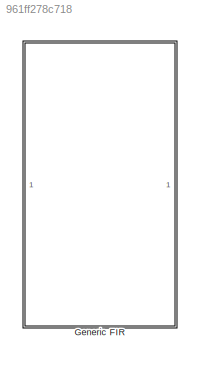
MODEL slx_961ff278c718
KIND library
CONFIG AbsTol = auto
CONFIG EnableMultiTasking = off
CONFIG FixedStep = auto
CONFIG MaxStep = auto
CONFIG MinStep = auto
CONFIG RelTol = 1e-3
CONFIG SampleTimeConstraint = Unconstrained
CONFIG SolverName = VariableStepAuto
CONFIG StartTime = 0.0
CONFIG StopTime = 10.0
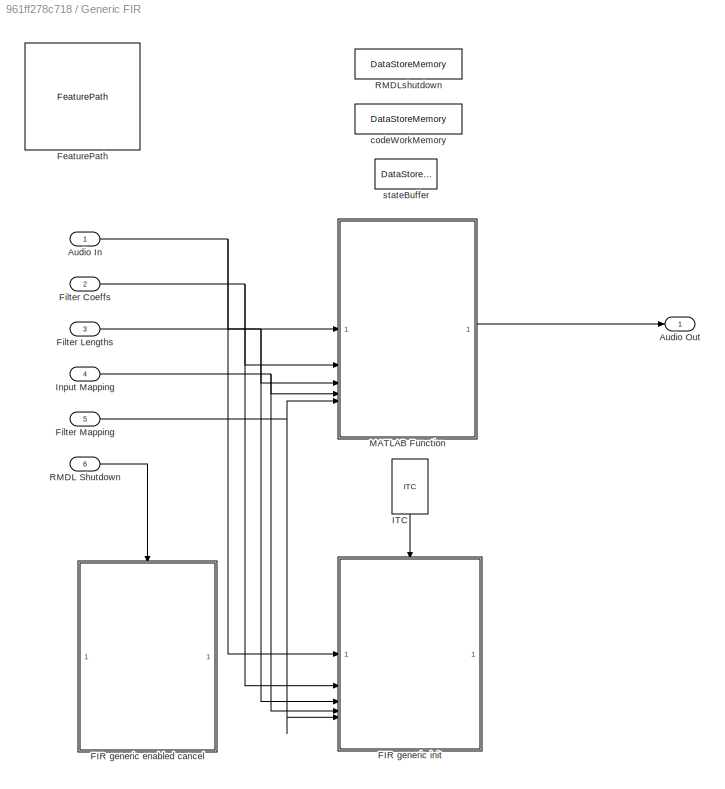
BLOCK [SubSystem] Generic FIR
BLOCK [Inport] Generic FIR/Audio In
BLOCK [Outport] Generic FIR/Audio Out
  VectorParamsAs1DForOutWhenUnconnected = off
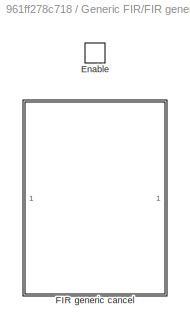
BLOCK [SubSystem] Generic FIR/FIR generic enabled cancel
  TreatAsAtomicUnit = on
BLOCK [EnablePort] Generic FIR/FIR generic enabled cancel/Enable
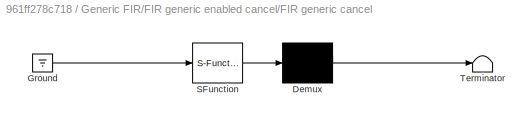
BLOCK [SubSystem] Generic FIR/FIR generic enabled cancel/FIR generic cancel
  ErrorFcn = Stateflow.Translate.translate
  PermitHierarchicalResolution = ExplicitOnly
  SFBlockType = MATLAB Function
  TreatAsAtomicUnit = on
BLOCK [Demux] Generic FIR/FIR generic enabled cancel/FIR generic cancel/ Demux 
  Outputs = 1
BLOCK [Ground] Generic FIR/FIR generic enabled cancel/FIR generic cancel/ Ground 
BLOCK [S-Function] Generic FIR/FIR generic enabled cancel/FIR generic cancel/ SFunction 
  EnableBusSupport = off
  FunctionName = sf_sfun
  Parameters = variantSelect
  PortCounts = [1 1]
  SFcnIsStateOwnerBlock = off
  SFunctionDeploymentMode = off
  Tag = Stateflow S-Function 5
BLOCK [Terminator] Generic FIR/FIR generic enabled cancel/FIR generic cancel/ Terminator 
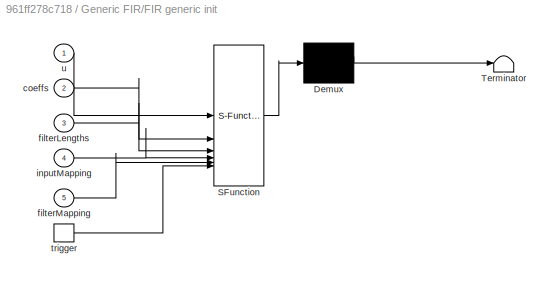
BLOCK [SubSystem] Generic FIR/FIR generic init
  ErrorFcn = Stateflow.Translate.translate
  PermitHierarchicalResolution = ExplicitOnly
  RTWFcnName = foo
  RTWFcnNameOpts = User specified
  SFBlockType = MATLAB Function
  TreatAsAtomicUnit = on
BLOCK [Demux] Generic FIR/FIR generic init/ Demux 
  Outputs = 1
BLOCK [S-Function] Generic FIR/FIR generic init/ SFunction 
  EnableBusSupport = off
  FunctionName = sf_sfun
  Parameters = variantSelect
  PortCounts = [6 1]
  SFcnIsStateOwnerBlock = off
  SFunctionDeploymentMode = off
  Tag = Stateflow S-Function 1
BLOCK [Terminator] Generic FIR/FIR generic init/ Terminator 
BLOCK [Inport] Generic FIR/FIR generic init/coeffs
  Port = 2
BLOCK [Inport] Generic FIR/FIR generic init/filterLengths
  Port = 3
BLOCK [Inport] Generic FIR/FIR generic init/filterMapping
  Port = 5
BLOCK [Inport] Generic FIR/FIR generic init/inputMapping
  Port = 4
BLOCK [TriggerPort] Generic FIR/FIR generic init/trigger
  ShowOutputPort = on
  StatesWhenEnabling = held
  TriggerType = function-call
  VariantControl = (inherit)
BLOCK [Inport] Generic FIR/FIR generic init/u
BLOCK [Reference] Generic FIR/FeaturePath  REF=FeaturePath/FeaturePath
  SourceBlock = FeaturePath/FeaturePath
  SourceProductName = Bose Talaria
  SourceType = Talaria Feature Path
BLOCK [Inport] Generic FIR/Filter Coeffs
  Port = 2
BLOCK [Inport] Generic FIR/Filter Lengths
  Port = 3
BLOCK [Inport] Generic FIR/Filter Mapping
  Port = 5
BLOCK [Reference] Generic FIR/ITC  REF=ITC/ITC
  NameLocation = left
  SourceBlock = ITC/ITC
  SourceProductName = Bose Talaria
  SourceType = Talaria Initialization Trigger Control
BLOCK [Inport] Generic FIR/Input Mapping
  Port = 4
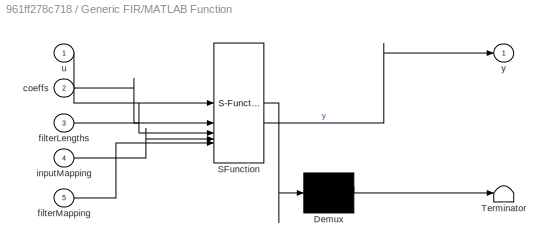
BLOCK [SubSystem] Generic FIR/MATLAB Function
  ErrorFcn = Stateflow.Translate.translate
  PermitHierarchicalResolution = ExplicitOnly
  SFBlockType = MATLAB Function
  TreatAsAtomicUnit = on
BLOCK [Demux] Generic FIR/MATLAB Function/ Demux 
  Outputs = 1
BLOCK [S-Function] Generic FIR/MATLAB Function/ SFunction 
  EnableBusSupport = off
  FunctionName = sf_sfun
  Parameters = variantSelect
  PortCounts = [5 2]
  SFcnIsStateOwnerBlock = off
  SFunctionDeploymentMode = off
  Tag = Stateflow S-Function 2
BLOCK [Terminator] Generic FIR/MATLAB Function/ Terminator 
BLOCK [Inport] Generic FIR/MATLAB Function/coeffs
  Port = 2
BLOCK [Inport] Generic FIR/MATLAB Function/filterLengths
  Port = 3
BLOCK [Inport] Generic FIR/MATLAB Function/filterMapping
  Port = 5
BLOCK [Inport] Generic FIR/MATLAB Function/inputMapping
  Port = 4
BLOCK [Inport] Generic FIR/MATLAB Function/u
BLOCK [Outport] Generic FIR/MATLAB Function/y
  VectorParamsAs1DForOutWhenUnconnected = off
BLOCK [Inport] Generic FIR/RMDL Shutdown
  Port = 6
BLOCK [DataStoreMemory] Generic FIR/RMDLshutdown
  DataStoreName = RMDLshutdown
  Dimensions = [1,1]
  LockScale = on
  OutDataTypeStr = uint32
  ShowAdditionalParam = off
  SignalType = real
  WriteAfterWriteMsg = warning
BLOCK [DataStoreMemory] Generic FIR/codeWorkMemory
  DataStoreName = codeWorkMemory
  EmbeddedSignalClassName = Blocklib.Signal
  InitialValue = zeros(1,codeWorkMemorySize)
  OutDataTypeStr = uint32
  ShowAdditionalParam = off
  SignalType = real
  WriteAfterWriteMsg = warning
BLOCK [DataStoreMemory] Generic FIR/stateBuffer
  DataStoreName = states
  EmbeddedSignalClassName = Blocklib.Signal
  InitialValue = zeros(stateBufferSize,1)
  OutDataTypeStr = single
  ReadBeforeWriteMsg = warning
  ShowAdditionalParam = off
  SignalType = real
  WriteAfterReadMsg = warning
  WriteAfterWriteMsg = warning
CHART Generic FIR/FIR generic init states=1 transitions=1
  STATE_LABEL 'eML_blk_kernel()'
  STATE_LABEL 'SCRIPT:\nfunction fir_generic_init(u,coeffs, filterLengths, inputMapping, filterMapping, variantSelect)\n\n% Generic FIR function to work with M inputs, N outputs and K filters\n%\n% Parameters:\n%   u:              input channels [frame size x number of inputs]\n%   coeffs:         coefficient sets [total filter lengths x 1]\n%   filterLengths:  array of filter lengths [number of filters x 1]\n%   inputMa...<+3339ch>'
CHART Generic FIR/MATLAB Function states=1 transitions=1
  STATE_LABEL 'eML_blk_kernel()'
  STATE_LABEL 'SCRIPT:\nfunction y = fir_generic(u, coeffs, filterLengths, inputMapping, filterMapping, variantSelect)\n% Generic FIR function to work with M inputs, N outputs and K filters\n%\n% Parameters:\n%   u:              input channels [frame size x number of inputs]\n%   coeffs:         coefficient sets [total filter lengths x 1]\n%   filterLengths:  array of filter lengths [number of filters x 1]\n%   inputMap...<+2895ch>'
CHART Generic FIR/FIR generic enabled cancel/FIR generic cancel states=1 transitions=1
  STATE_LABEL 'eML_blk_kernel()'
  STATE_LABEL 'SCRIPT:\nfunction fir_generic_cancel(variantSelect)\n\n% FIR accelerator function stops step/process function from running on each\n% frame and cancels FIR accelerator task if currently active.\n% \n% Parameters:\n%   None\n%\n% Global parameters:\n%   codeWorkMemory: Working memory set up during roommode reset/init CRL\n%                   function call [1 x codeWorkMemorySize]\n%   RMDLshutdown: Flag to ind...<+1272ch>'
CHART  states=0 transitions=0
CHART  states=0 transitions=0
CHART  states=0 transitions=0
